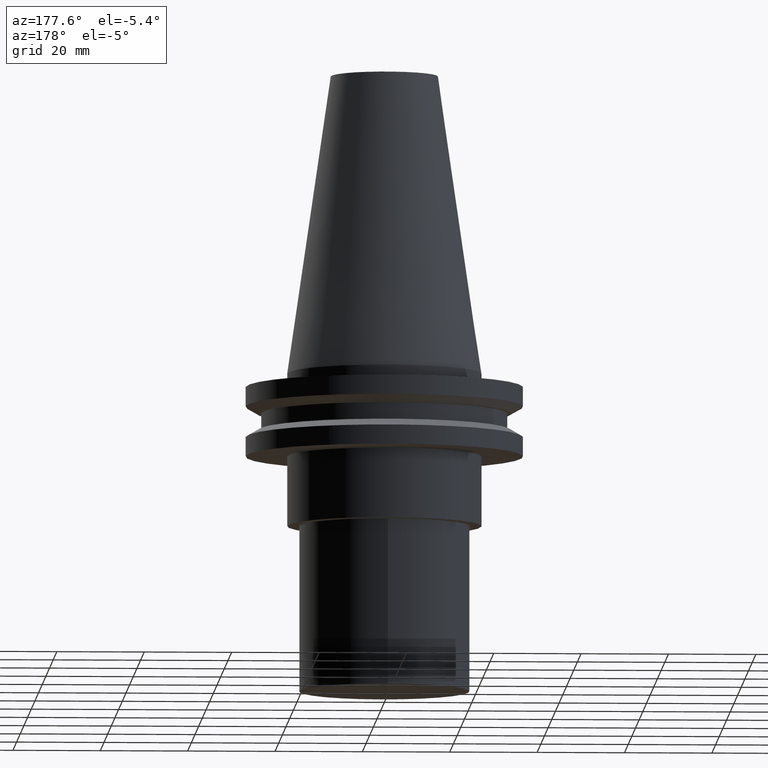
[diagram: clean part render]
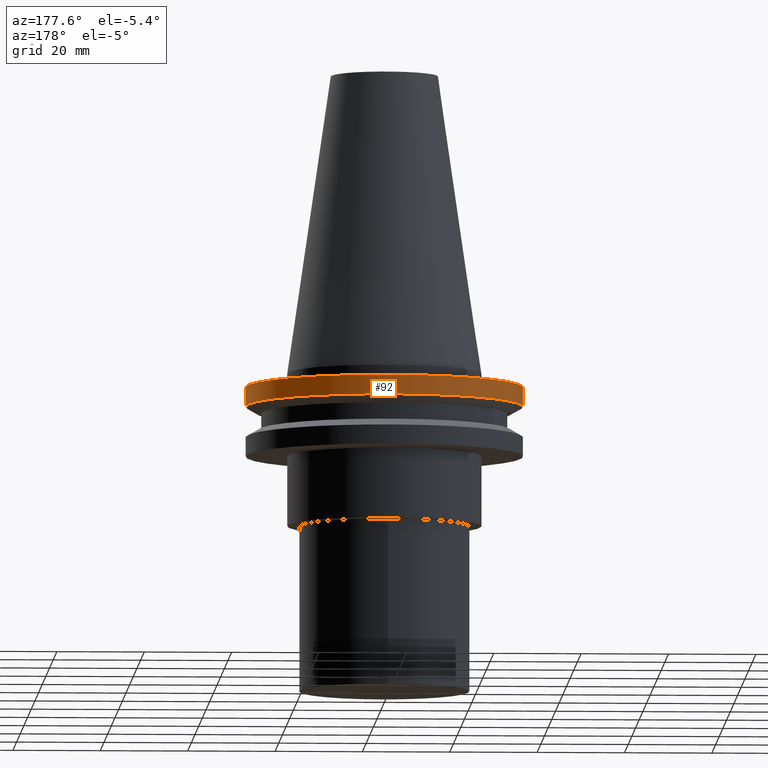
[diagram: same view with one face highlighted and labeled with its STEP entity id]
A machine part, auxiliary view. The second image highlights one B-rep face of the part: STEP entity #92.
In plain terms, the highlighted cylindrical surface (bore or boss wall) has radius 31.75 mm, axis along (-0, -0, 1).
Its self-contained STEP definition (entity closure, byte-faithful):
#23 = CARTESIAN_POINT ( 'NONE',  ( 31.75000000000000000, 0.000000000000000000, -3.174999999999997158 ) ) ;
#58 = AXIS2_PLACEMENT_3D ( 'NONE', #364, #274, #391 ) ;
#63 = AXIS2_PLACEMENT_3D ( 'NONE', #174, #323, #380 ) ;
#75 = FACE_OUTER_BOUND ( 'NONE', #141, .T. ) ;
#92 = ADVANCED_FACE ( 'NONE', ( #383, #75 ), #200, .T. ) ;
#110 = DIRECTION ( 'NONE',  ( -0.000000000000000000, -0.000000000000000000, 1.000000000000000000 ) ) ;
#141 = EDGE_LOOP ( 'NONE', ( #376 ) ) ;
#143 = AXIS2_PLACEMENT_3D ( 'NONE', #295, #110, #262 ) ;
#174 = CARTESIAN_POINT ( 'NONE',  ( 0.000000000000000000, 0.000000000000000000, -7.605276606597335842 ) ) ;
#196 = CIRCLE ( 'NONE', #63, 31.75000000000000000 ) ;
#200 = CYLINDRICAL_SURFACE ( 'NONE', #58, 31.75000000000000000 ) ;
#214 = VERTEX_POINT ( 'NONE', #337 ) ;
#262 = DIRECTION ( 'NONE',  ( 1.000000000000000000, 0.000000000000000000, 0.000000000000000000 ) ) ;
#265 = EDGE_LOOP ( 'NONE', ( #368 ) ) ;
#274 = DIRECTION ( 'NONE',  ( -0.000000000000000000, -0.000000000000000000, 1.000000000000000000 ) ) ;
#275 = VERTEX_POINT ( 'NONE', #23 ) ;
#295 = CARTESIAN_POINT ( 'NONE',  ( 0.000000000000000000, 0.000000000000000000, -3.174999999999997158 ) ) ;
#309 = EDGE_CURVE ( 'NONE', #275, #275, #312, .T. ) ;
#312 = CIRCLE ( 'NONE', #143, 31.75000000000000000 ) ;
#313 = EDGE_CURVE ( 'NONE', #214, #214, #196, .T. ) ;
#323 = DIRECTION ( 'NONE',  ( -0.000000000000000000, -0.000000000000000000, 1.000000000000000000 ) ) ;
#337 = CARTESIAN_POINT ( 'NONE',  ( 31.75000000000000000, 0.000000000000000000, -7.605276606597335842 ) ) ;
#364 = CARTESIAN_POINT ( 'NONE',  ( 0.000000000000000000, 0.000000000000000000, 68.25000000000000000 ) ) ;
#368 = ORIENTED_EDGE ( 'NONE', *, *, #309, .F. ) ;
#376 = ORIENTED_EDGE ( 'NONE', *, *, #313, .T. ) ;
#380 = DIRECTION ( 'NONE',  ( 1.000000000000000000, 0.000000000000000000, 0.000000000000000000 ) ) ;
#383 = FACE_OUTER_BOUND ( 'NONE', #265, .T. ) ;
#391 = DIRECTION ( 'NONE',  ( 1.000000000000000000, 0.000000000000000000, 0.000000000000000000 ) ) ;